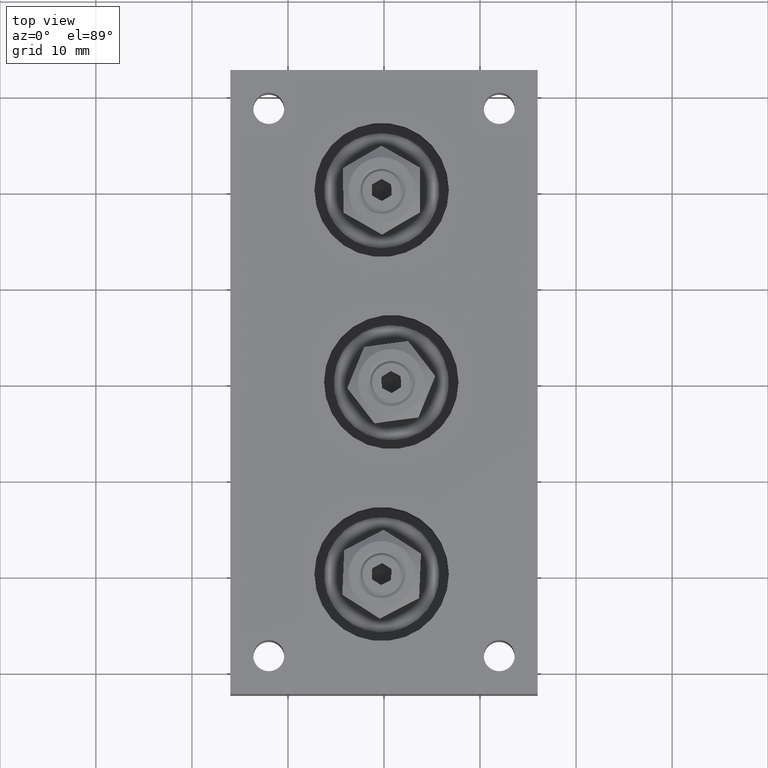
[diagram: clean part render]
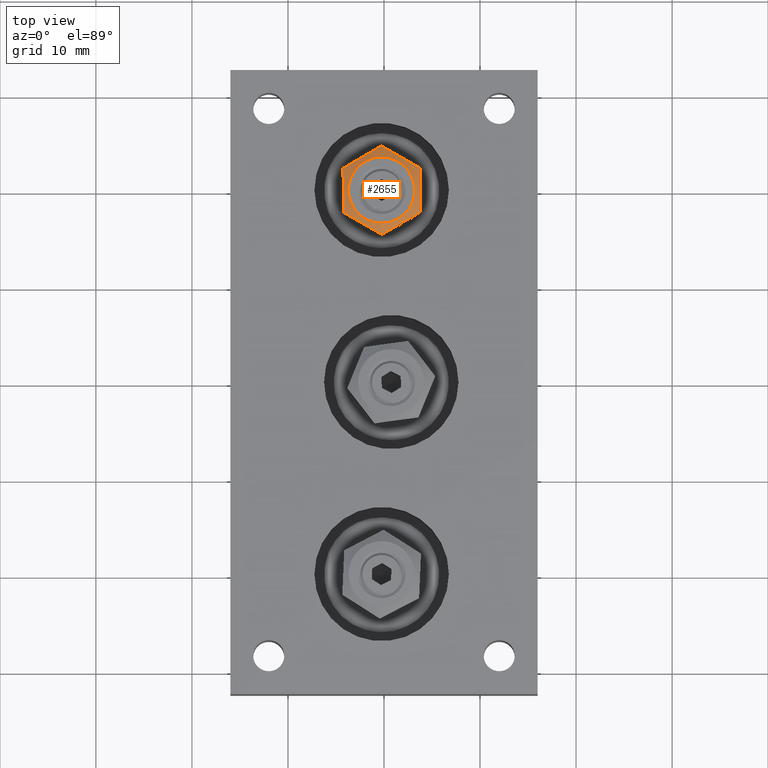
[diagram: same view with one face highlighted and labeled with its STEP entity id]
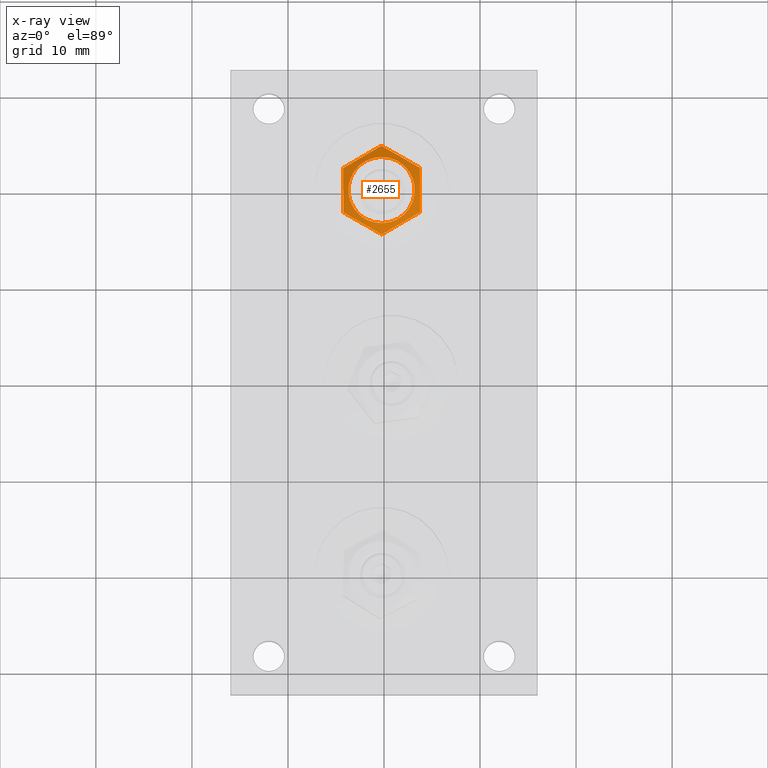
[diagram: x-ray of the same camera — body ghosted, the highlighted face saturated]
A machine part, top view. The second image highlights one B-rep face of the part: STEP entity #2655.
The next image is the same camera in x-ray: the body ghosted, the highlighted face saturated — about 0% of this face is hidden behind the body in this view.
In plain terms, the highlighted conical surface has half-angle 60 deg.
Its self-contained STEP definition (entity closure, byte-faithful):
#73=(
BOUNDED_CURVE()
B_SPLINE_CURVE(2,(#4778,#4779,#4780),.UNSPECIFIED.,.F.,.F.)
B_SPLINE_CURVE_WITH_KNOTS((3,3),(0.,0.467374455231169),.UNSPECIFIED.)
CURVE()
GEOMETRIC_REPRESENTATION_ITEM()
RATIONAL_B_SPLINE_CURVE((1.,1.15470053837925,1.))
REPRESENTATION_ITEM('')
);
#74=(
BOUNDED_CURVE()
B_SPLINE_CURVE(2,(#4782,#4783,#4784),.UNSPECIFIED.,.F.,.F.)
B_SPLINE_CURVE_WITH_KNOTS((3,3),(0.,0.467374455231166),.UNSPECIFIED.)
CURVE()
GEOMETRIC_REPRESENTATION_ITEM()
RATIONAL_B_SPLINE_CURVE((1.,1.15470053837925,1.))
REPRESENTATION_ITEM('')
);
#75=(
BOUNDED_CURVE()
B_SPLINE_CURVE(2,(#4786,#4787,#4788),.UNSPECIFIED.,.F.,.F.)
B_SPLINE_CURVE_WITH_KNOTS((3,3),(0.,0.467374455231166),.UNSPECIFIED.)
CURVE()
GEOMETRIC_REPRESENTATION_ITEM()
RATIONAL_B_SPLINE_CURVE((1.,1.15470053837925,1.))
REPRESENTATION_ITEM('')
);
#76=(
BOUNDED_CURVE()
B_SPLINE_CURVE(2,(#4790,#4791,#4792),.UNSPECIFIED.,.F.,.F.)
B_SPLINE_CURVE_WITH_KNOTS((3,3),(0.,0.467374455231167),.UNSPECIFIED.)
CURVE()
GEOMETRIC_REPRESENTATION_ITEM()
RATIONAL_B_SPLINE_CURVE((1.,1.15470053837925,1.))
REPRESENTATION_ITEM('')
);
#77=(
BOUNDED_CURVE()
B_SPLINE_CURVE(2,(#4794,#4795,#4796),.UNSPECIFIED.,.F.,.F.)
B_SPLINE_CURVE_WITH_KNOTS((3,3),(0.,0.467374455231167),.UNSPECIFIED.)
CURVE()
GEOMETRIC_REPRESENTATION_ITEM()
RATIONAL_B_SPLINE_CURVE((1.,1.15470053837925,1.))
REPRESENTATION_ITEM('')
);
#78=(
BOUNDED_CURVE()
B_SPLINE_CURVE(2,(#4797,#4798,#4799),.UNSPECIFIED.,.F.,.F.)
B_SPLINE_CURVE_WITH_KNOTS((3,3),(0.,0.467374455231167),.UNSPECIFIED.)
CURVE()
GEOMETRIC_REPRESENTATION_ITEM()
RATIONAL_B_SPLINE_CURVE((1.,1.15470053837924,1.))
REPRESENTATION_ITEM('')
);
#435=FACE_OUTER_BOUND('',#632,.T.);
#632=EDGE_LOOP('',(#2447,#2448,#2449,#2450,#2451,#2452,#2453,#2454,#2455));
#834=LINE('',#4776,#1036);
#1036=VECTOR('',#3988,4.0344010767585);
#1184=CIRCLE('',#3158,3.45);
#1399=VERTEX_POINT('',#4746);
#1406=VERTEX_POINT('',#4775);
#1407=VERTEX_POINT('',#4777);
#1408=VERTEX_POINT('',#4781);
#1409=VERTEX_POINT('',#4785);
#1410=VERTEX_POINT('',#4789);
#1411=VERTEX_POINT('',#4793);
#1747=EDGE_CURVE('',#1399,#1399,#1184,.T.);
#1755=EDGE_CURVE('',#1399,#1406,#834,.T.);
#1756=EDGE_CURVE('',#1407,#1406,#73,.T.);
#1757=EDGE_CURVE('',#1408,#1407,#74,.T.);
#1758=EDGE_CURVE('',#1409,#1408,#75,.T.);
#1759=EDGE_CURVE('',#1410,#1409,#76,.T.);
#1760=EDGE_CURVE('',#1411,#1410,#77,.T.);
#1761=EDGE_CURVE('',#1406,#1411,#78,.T.);
#2447=ORIENTED_EDGE('',*,*,#1747,.F.);
#2448=ORIENTED_EDGE('',*,*,#1755,.T.);
#2449=ORIENTED_EDGE('',*,*,#1756,.F.);
#2450=ORIENTED_EDGE('',*,*,#1757,.F.);
#2451=ORIENTED_EDGE('',*,*,#1758,.F.);
#2452=ORIENTED_EDGE('',*,*,#1759,.F.);
#2453=ORIENTED_EDGE('',*,*,#1760,.F.);
#2454=ORIENTED_EDGE('',*,*,#1761,.F.);
#2455=ORIENTED_EDGE('',*,*,#1755,.F.);
#2501=CONICAL_SURFACE('',#3160,4.0344010767585,1.0471975511966);
#2655=ADVANCED_FACE('',(#435),#2501,.T.);
#3158=AXIS2_PLACEMENT_3D('',#4747,#3981,#3982);
#3160=AXIS2_PLACEMENT_3D('',#4774,#3986,#3987);
#3981=DIRECTION('center_axis',(1.,0.,0.));
#3982=DIRECTION('ref_axis',(1.20222587816582E-16,1.,0.));
#3986=DIRECTION('center_axis',(-1.,0.,0.));
#3987=DIRECTION('ref_axis',(1.20222587816582E-16,1.,0.));
#3988=DIRECTION('',(-0.5,-0.866025403784439,1.06057523872491E-16));
#4746=CARTESIAN_POINT('',(4.7,-3.45,4.22503145705837E-16));
#4747=CARTESIAN_POINT('Origin',(4.7,0.,0.));
#4774=CARTESIAN_POINT('Origin',(4.36259588101877,0.,0.));
#4775=CARTESIAN_POINT('',(4.02519176203754,-4.61880215351701,8.32667268468867E-16));
#4776=CARTESIAN_POINT('',(4.36259588101877,-4.0344010767585,4.94071636512894E-16));
#4777=CARTESIAN_POINT('',(4.02519176203754,-2.30940107675849,-4.00000000000001));
#4778=CARTESIAN_POINT('Ctrl Pts',(4.02519176203754,-2.30940107675849,-4.00000000000001));
#4779=CARTESIAN_POINT('Ctrl Pts',(4.69185842870421,-3.46410161513775,-2.));
#4780=CARTESIAN_POINT('Ctrl Pts',(4.02519176203754,-4.61880215351701,2.85984856209972E-15));
#4781=CARTESIAN_POINT('',(4.02519176203754,2.30940107675851,-3.99999999999999));
#4782=CARTESIAN_POINT('Ctrl Pts',(4.02519176203754,2.30940107675851,-4.));
#4783=CARTESIAN_POINT('Ctrl Pts',(4.6918584287042,7.80723396931086E-15,
-4.));
#4784=CARTESIAN_POINT('Ctrl Pts',(4.02519176203754,-2.30940107675849,-4.00000000000001));
#4785=CARTESIAN_POINT('',(4.02519176203754,4.61880215351701,0.));
#4786=CARTESIAN_POINT('Ctrl Pts',(4.02519176203754,4.61880215351701,1.58880475672207E-15));
#4787=CARTESIAN_POINT('Ctrl Pts',(4.69185842870421,3.46410161513776,-2.));
#4788=CARTESIAN_POINT('Ctrl Pts',(4.02519176203754,2.30940107675852,-3.99999999999999));
#4789=CARTESIAN_POINT('',(4.02519176203754,2.3094010767585,4.));
#4790=CARTESIAN_POINT('Ctrl Pts',(4.02519176203754,2.3094010767585,4.));
#4791=CARTESIAN_POINT('Ctrl Pts',(4.69185842870421,3.46410161513775,2.));
#4792=CARTESIAN_POINT('Ctrl Pts',(4.02519176203754,4.61880215351701,2.85984856209972E-15));
#4793=CARTESIAN_POINT('',(4.02519176203754,-2.3094010767585,4.));
#4794=CARTESIAN_POINT('Ctrl Pts',(4.02519176203754,-2.3094010767585,4.));
#4795=CARTESIAN_POINT('Ctrl Pts',(4.69185842870421,0.,4.));
#4796=CARTESIAN_POINT('Ctrl Pts',(4.02519176203754,2.3094010767585,4.));
#4797=CARTESIAN_POINT('Ctrl Pts',(4.02519176203754,-4.61880215351701,0.));
#4798=CARTESIAN_POINT('Ctrl Pts',(4.69185842870421,-3.46410161513776,2.));
#4799=CARTESIAN_POINT('Ctrl Pts',(4.02519176203754,-2.3094010767585,4.));